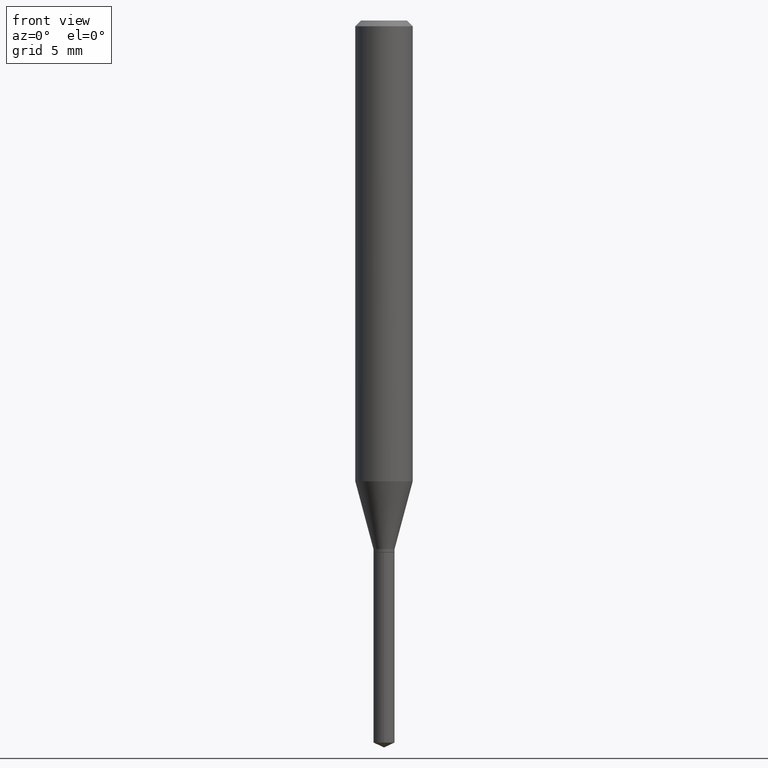
[diagram: clean part render]
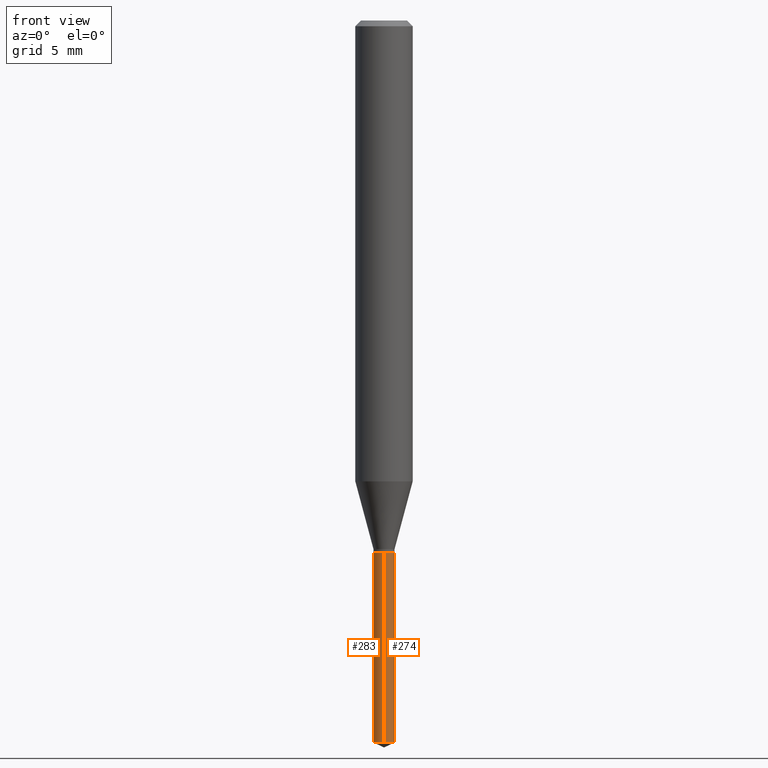
[diagram: same view with one multi-face feature highlighted, each face labeled with its STEP entity id]
A machine part, front view. The highlighted faces form ONE feature: a constant-radius fillet chain: 2 tangent blend faces with common blend radius 0.5499 mm. The faces share edges in the B-rep.
Their STEP definitions:
[1] entity #274 (Cylinder):
#18 = EDGE_CURVE ( 'NONE', #301, #359, #177, .T. ) ;
#21 = EDGE_CURVE ( 'NONE', #301, #399, #88, .T. ) ;
#22 = VECTOR ( 'NONE', #67, 39.37007874015748143 ) ;
#32 = AXIS2_PLACEMENT_3D ( 'NONE', #268, #185, #37 ) ;
#37 = DIRECTION ( 'NONE',  ( -6.982962677686265922E-15, -1.000000000000000000, 0.000000000000000000 ) ) ;
#42 = DIRECTION ( 'NONE',  ( -2.445470214571802116E-29, 3.491479321953280158E-15, 1.000000000000000000 ) ) ;
#48 = DIRECTION ( 'NONE',  ( -6.982962677686265922E-15, -1.000000000000000000, 6.309117768277745325E-15 ) ) ;
#67 = DIRECTION ( 'NONE',  ( -2.445470214571802396E-29, 3.491479321953280158E-15, 1.000000000000000000 ) ) ;
#70 = EDGE_CURVE ( 'NONE', #399, #375, #298, .T. ) ;
#88 = CIRCLE ( 'NONE', #32, 0.02164999999999999564 ) ;
#90 = CARTESIAN_POINT ( 'NONE',  ( -1.511811419718713449E-16, -0.02165000000000518940, -1.486004439200944383 ) ) ;
#175 = CARTESIAN_POINT ( 'NONE',  ( 1.538325022920883819E-16, 0.02164999999999617578, -1.094500000000000028 ) ) ;
#177 = LINE ( 'NONE', #229, #22 ) ;
#185 = DIRECTION ( 'NONE',  ( -2.445470214571802116E-29, 3.491479321953280158E-15, 1.000000000000000000 ) ) ;
#193 = EDGE_CURVE ( 'NONE', #359, #375, #206, .T. ) ;
#206 = CIRCLE ( 'NONE', #480, 0.02164999999999999564 ) ;
#212 = CARTESIAN_POINT ( 'NONE',  ( -1.511811419718808852E-16, -0.02165000000000381897, -1.094499999999999806 ) ) ;
#220 = CARTESIAN_POINT ( 'NONE',  ( 1.538325022920980454E-16, 0.02164999999999617578, -1.094500000000000028 ) ) ;
#224 = EDGE_LOOP ( 'NONE', ( #324, #479, #284, #292 ) ) ;
#229 = CARTESIAN_POINT ( 'NONE',  ( -1.511811419718808852E-16, -0.02165000000000381897, -1.094499999999999806 ) ) ;
#268 = CARTESIAN_POINT ( 'NONE',  ( 3.633978053308179170E-29, -5.188355979286834732E-15, -1.486004439200944383 ) ) ;
#273 = AXIS2_PLACEMENT_3D ( 'NONE', #357, #402, #48 ) ;
#274 = ADVANCED_FACE ( 'NONE', ( #326 ), #432, .T. ) ;
#284 = ORIENTED_EDGE ( 'NONE', *, *, #193, .F. ) ;
#292 = ORIENTED_EDGE ( 'NONE', *, *, #18, .F. ) ;
#298 = LINE ( 'NONE', #175, #391 ) ;
#300 = CARTESIAN_POINT ( 'NONE',  ( 1.538325022920979961E-16, 0.02164999999999481575, -1.486004439200944383 ) ) ;
#301 = VERTEX_POINT ( 'NONE', #90 ) ;
#307 = DIRECTION ( 'NONE',  ( -6.982962677686265922E-15, -1.000000000000000000, 6.309117768277745325E-15 ) ) ;
#324 = ORIENTED_EDGE ( 'NONE', *, *, #21, .T. ) ;
#326 = FACE_OUTER_BOUND ( 'NONE', #224, .T. ) ;
#331 = DIRECTION ( 'NONE',  ( -2.445470214571802396E-29, 3.491479321953280158E-15, 1.000000000000000000 ) ) ;
#357 = CARTESIAN_POINT ( 'NONE',  ( 2.676565608369631794E-29, -3.821426325363822773E-15, -1.094499999999999806 ) ) ;
#359 = VERTEX_POINT ( 'NONE', #212 ) ;
#375 = VERTEX_POINT ( 'NONE', #220 ) ;
#391 = VECTOR ( 'NONE', #331, 39.37007874015748143 ) ;
#392 = CARTESIAN_POINT ( 'NONE',  ( 2.676565608369631794E-29, -3.821426325363822773E-15, -1.094499999999999806 ) ) ;
#399 = VERTEX_POINT ( 'NONE', #300 ) ;
#402 = DIRECTION ( 'NONE',  ( -2.445470214571802116E-29, 3.491479321953280158E-15, 1.000000000000000000 ) ) ;
#432 = CYLINDRICAL_SURFACE ( 'NONE', #273, 0.02164999999999999564 ) ;
#479 = ORIENTED_EDGE ( 'NONE', *, *, #70, .T. ) ;
#480 = AXIS2_PLACEMENT_3D ( 'NONE', #392, #42, #307 ) ;
[2] entity #283 (Cylinder):
#18 = EDGE_CURVE ( 'NONE', #301, #359, #177, .T. ) ;
#22 = VECTOR ( 'NONE', #67, 39.37007874015748143 ) ;
#30 = ORIENTED_EDGE ( 'NONE', *, *, #425, .F. ) ;
#67 = DIRECTION ( 'NONE',  ( -2.445470214571802396E-29, 3.491479321953280158E-15, 1.000000000000000000 ) ) ;
#69 = DIRECTION ( 'NONE',  ( -2.445470214571802116E-29, 3.491479321953280158E-15, 1.000000000000000000 ) ) ;
#70 = EDGE_CURVE ( 'NONE', #399, #375, #298, .T. ) ;
#90 = CARTESIAN_POINT ( 'NONE',  ( -1.511811419718713449E-16, -0.02165000000000518940, -1.486004439200944383 ) ) ;
#160 = CARTESIAN_POINT ( 'NONE',  ( 2.676565608369631794E-29, -3.821426325363822773E-15, -1.094499999999999806 ) ) ;
#174 = DIRECTION ( 'NONE',  ( -6.982962677686265922E-15, -1.000000000000000000, 6.309117768277745325E-15 ) ) ;
#175 = CARTESIAN_POINT ( 'NONE',  ( 1.538325022920883819E-16, 0.02164999999999617578, -1.094500000000000028 ) ) ;
#177 = LINE ( 'NONE', #229, #22 ) ;
#212 = CARTESIAN_POINT ( 'NONE',  ( -1.511811419718808852E-16, -0.02165000000000381897, -1.094499999999999806 ) ) ;
#220 = CARTESIAN_POINT ( 'NONE',  ( 1.538325022920980454E-16, 0.02164999999999617578, -1.094500000000000028 ) ) ;
#229 = CARTESIAN_POINT ( 'NONE',  ( -1.511811419718808852E-16, -0.02165000000000381897, -1.094499999999999806 ) ) ;
#235 = AXIS2_PLACEMENT_3D ( 'NONE', #160, #291, #408 ) ;
#247 = EDGE_LOOP ( 'NONE', ( #449, #475, #329, #30 ) ) ;
#254 = CYLINDRICAL_SURFACE ( 'NONE', #235, 0.02164999999999999564 ) ;
#259 = DIRECTION ( 'NONE',  ( -2.445470214571802116E-29, 3.491479321953280158E-15, 1.000000000000000000 ) ) ;
#266 = CARTESIAN_POINT ( 'NONE',  ( 3.633978053308179170E-29, -5.188355979286834732E-15, -1.486004439200944383 ) ) ;
#282 = FACE_OUTER_BOUND ( 'NONE', #247, .T. ) ;
#283 = ADVANCED_FACE ( 'NONE', ( #282 ), #254, .T. ) ;
#291 = DIRECTION ( 'NONE',  ( -2.445470214571802116E-29, 3.491479321953280158E-15, 1.000000000000000000 ) ) ;
#298 = LINE ( 'NONE', #175, #391 ) ;
#300 = CARTESIAN_POINT ( 'NONE',  ( 1.538325022920979961E-16, 0.02164999999999481575, -1.486004439200944383 ) ) ;
#301 = VERTEX_POINT ( 'NONE', #90 ) ;
#310 = AXIS2_PLACEMENT_3D ( 'NONE', #482, #69, #174 ) ;
#329 = ORIENTED_EDGE ( 'NONE', *, *, #18, .T. ) ;
#331 = DIRECTION ( 'NONE',  ( -2.445470214571802396E-29, 3.491479321953280158E-15, 1.000000000000000000 ) ) ;
#359 = VERTEX_POINT ( 'NONE', #212 ) ;
#375 = VERTEX_POINT ( 'NONE', #220 ) ;
#377 = CIRCLE ( 'NONE', #310, 0.02164999999999999564 ) ;
#391 = VECTOR ( 'NONE', #331, 39.37007874015748143 ) ;
#399 = VERTEX_POINT ( 'NONE', #300 ) ;
#408 = DIRECTION ( 'NONE',  ( -6.982962677686265922E-15, -1.000000000000000000, 6.309117768277745325E-15 ) ) ;
#425 = EDGE_CURVE ( 'NONE', #375, #359, #377, .T. ) ;
#449 = ORIENTED_EDGE ( 'NONE', *, *, #70, .F. ) ;
#450 = DIRECTION ( 'NONE',  ( -6.982962677686265922E-15, -1.000000000000000000, 0.000000000000000000 ) ) ;
#461 = CIRCLE ( 'NONE', #489, 0.02164999999999999564 ) ;
#475 = ORIENTED_EDGE ( 'NONE', *, *, #485, .T. ) ;
#482 = CARTESIAN_POINT ( 'NONE',  ( 2.676565608369631794E-29, -3.821426325363822773E-15, -1.094499999999999806 ) ) ;
#485 = EDGE_CURVE ( 'NONE', #399, #301, #461, .T. ) ;
#489 = AXIS2_PLACEMENT_3D ( 'NONE', #266, #259, #450 ) ;